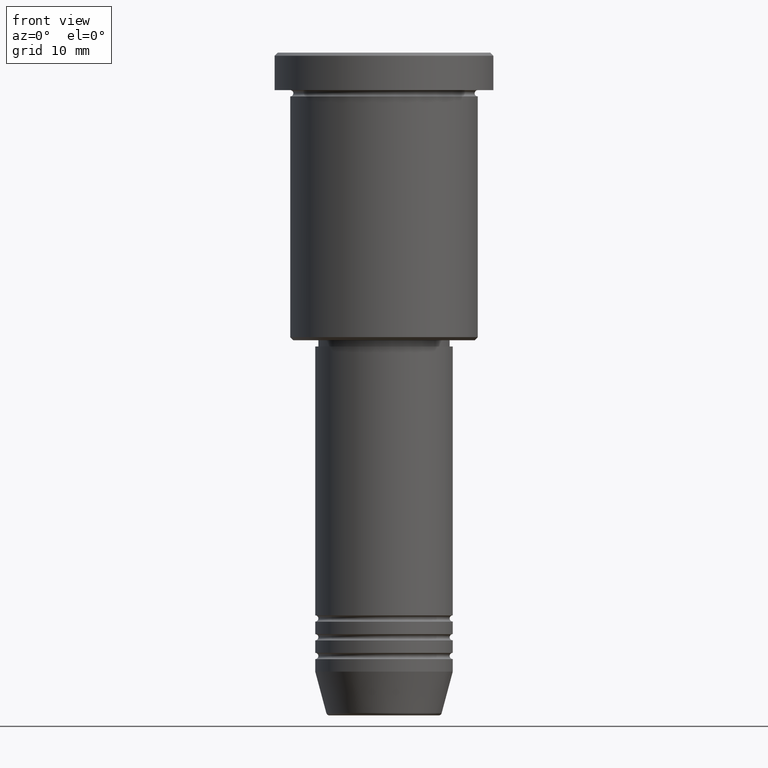
[diagram: clean part render]
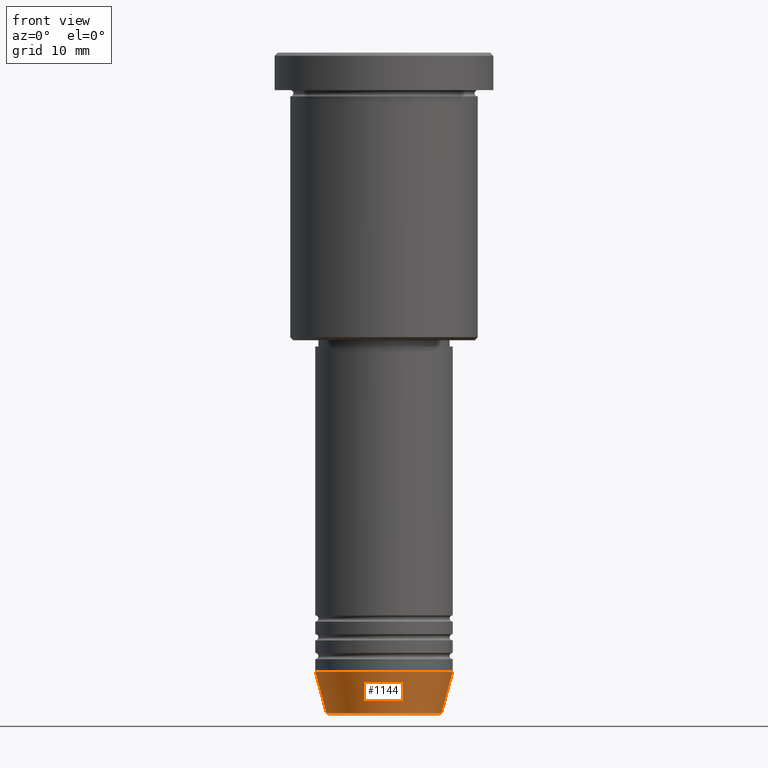
[diagram: same view with one face highlighted and labeled with its STEP entity id]
A machine part, front view. The second image highlights one B-rep face of the part: STEP entity #1144.
In plain terms, the highlighted conical surface has half-angle 15 deg.
Its self-contained STEP definition (entity closure, byte-faithful):
#44 = CARTESIAN_POINT ( 'NONE',  ( -11.00000000000000000, 1.347111479062088405E-15, -99.00000000000000000 ) ) ;
#96 = VERTEX_POINT ( 'NONE', #859 ) ;
#100 = DIRECTION ( 'NONE',  ( 1.000000000000000000, 0.000000000000000000, 0.000000000000000000 ) ) ;
#116 = EDGE_CURVE ( 'NONE', #653, #562, #793, .T. ) ;
#118 = ORIENTED_EDGE ( 'NONE', *, *, #992, .T. ) ;
#144 = DIRECTION ( 'NONE',  ( -0.2588190451025213501, 3.169619151431772337E-17, 0.9659258262890680902 ) ) ;
#226 = CARTESIAN_POINT ( 'NONE',  ( 11.00000000000000000, 0.000000000000000000, -99.00000000000000000 ) ) ;
#234 = LINE ( 'NONE', #44, #561 ) ;
#240 = AXIS2_PLACEMENT_3D ( 'NONE', #1154, #895, #350 ) ;
#245 = FACE_OUTER_BOUND ( 'NONE', #764, .T. ) ;
#273 = ORIENTED_EDGE ( 'NONE', *, *, #480, .T. ) ;
#326 = CARTESIAN_POINT ( 'NONE',  ( -11.00000000000000000, 1.347111479062088405E-15, -99.00000000000000000 ) ) ;
#329 = CIRCLE ( 'NONE', #374, 9.223655072137191269 ) ;
#350 = DIRECTION ( 'NONE',  ( 1.000000000000000000, 0.000000000000000000, 0.000000000000000000 ) ) ;
#374 = AXIS2_PLACEMENT_3D ( 'NONE', #398, #502, #572 ) ;
#383 = CARTESIAN_POINT ( 'NONE',  ( 11.00000000000000000, 0.000000000000000000, -99.00000000000000000 ) ) ;
#398 = CARTESIAN_POINT ( 'NONE',  ( 0.000000000000000000, 0.000000000000000000, -105.6294095225512422 ) ) ;
#429 = AXIS2_PLACEMENT_3D ( 'NONE', #924, #939, #100 ) ;
#463 = ORIENTED_EDGE ( 'NONE', *, *, #116, .F. ) ;
#480 = EDGE_CURVE ( 'NONE', #96, #1067, #329, .T. ) ;
#502 = DIRECTION ( 'NONE',  ( -0.000000000000000000, -0.000000000000000000, 1.000000000000000000 ) ) ;
#561 = VECTOR ( 'NONE', #144, 1000.000000000000000 ) ;
#562 = VERTEX_POINT ( 'NONE', #383 ) ;
#572 = DIRECTION ( 'NONE',  ( 1.000000000000000000, 0.000000000000000000, 0.000000000000000000 ) ) ;
#620 = EDGE_CURVE ( 'NONE', #96, #653, #234, .T. ) ;
#636 = ORIENTED_EDGE ( 'NONE', *, *, #620, .F. ) ;
#653 = VERTEX_POINT ( 'NONE', #326 ) ;
#689 = VECTOR ( 'NONE', #789, 1000.000000000000000 ) ;
#696 = CARTESIAN_POINT ( 'NONE',  ( 9.223655072137191269, 0.000000000000000000, -105.6294095225512422 ) ) ;
#764 = EDGE_LOOP ( 'NONE', ( #636, #273, #118, #463 ) ) ;
#789 = DIRECTION ( 'NONE',  ( 0.2588190451025213501, 0.000000000000000000, 0.9659258262890680902 ) ) ;
#793 = CIRCLE ( 'NONE', #429, 11.00000000000000000 ) ;
#859 = CARTESIAN_POINT ( 'NONE',  ( -9.223655072137191269, 1.238341722557647202E-15, -105.6294095225512422 ) ) ;
#895 = DIRECTION ( 'NONE',  ( -0.000000000000000000, -0.000000000000000000, 1.000000000000000000 ) ) ;
#924 = CARTESIAN_POINT ( 'NONE',  ( 0.000000000000000000, 0.000000000000000000, -99.00000000000000000 ) ) ;
#939 = DIRECTION ( 'NONE',  ( -0.000000000000000000, -0.000000000000000000, 1.000000000000000000 ) ) ;
#958 = LINE ( 'NONE', #226, #689 ) ;
#992 = EDGE_CURVE ( 'NONE', #1067, #562, #958, .T. ) ;
#1045 = CONICAL_SURFACE ( 'NONE', #240, 11.00000000000000000, 0.2617993877991500740 ) ;
#1067 = VERTEX_POINT ( 'NONE', #696 ) ;
#1144 = ADVANCED_FACE ( 'NONE', ( #245 ), #1045, .T. ) ;
#1154 = CARTESIAN_POINT ( 'NONE',  ( 0.000000000000000000, 0.000000000000000000, -99.00000000000000000 ) ) ;